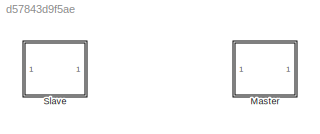
MODEL slx_d57843d9f5ae
KIND library
CONFIG AbsTol = 1e-6
CONFIG EnableMultiTasking = off
CONFIG FixedStep = auto
CONFIG MaxStep = auto
CONFIG MinStep = auto
CONFIG RelTol = 1e-3
CONFIG SampleTimeConstraint = Unconstrained
CONFIG SolverName = ode45
CONFIG StartTime = 0.0
CONFIG StopTime = 10.0
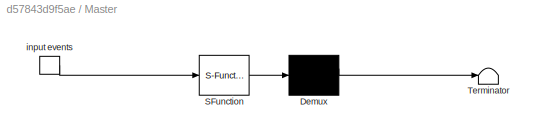
BLOCK [SubSystem] Master
  BlockKeywords = __PRM__SERIALIZED__DATA__:Stateflow Chart,Stateflow Diagram
  ErrorFcn = Stateflow.Translate.translate
  PermitHierarchicalResolution = ExplicitOnly
  SFBlockType = Chart
  TreatAsAtomicUnit = on
BLOCK [Demux] Master/ Demux 
  Outputs = 1
BLOCK [S-Function] Master/ SFunction 
  EnableBusSupport = off
  FunctionName = sf_sfun
  PortCounts = [1 1]
  SFcnIsStateOwnerBlock = off
  SFunctionDeploymentMode = off
  Tag = Stateflow S-Function 3
BLOCK [Terminator] Master/ Terminator 
BLOCK [TriggerPort] Master/input events
  ShowOutputPort = on
  StatesWhenEnabling = held
  TriggerType = function-call
  VariantControl = (inherit)
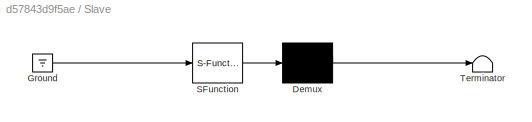
BLOCK [SubSystem] Slave
  ErrorFcn = Stateflow.Translate.translate
  PermitHierarchicalResolution = ExplicitOnly
  SFBlockType = Chart
  TreatAsAtomicUnit = on
BLOCK [Demux] Slave/ Demux 
  Outputs = 1
BLOCK [Ground] Slave/ Ground 
BLOCK [S-Function] Slave/ SFunction 
  EnableBusSupport = off
  FunctionName = sf_sfun
  PortCounts = [1 1]
  SFcnIsStateOwnerBlock = off
  SFunctionDeploymentMode = off
  Tag = Stateflow S-Function 1
BLOCK [Terminator] Slave/ Terminator 
CHART Slave states=0 transitions=0
CHART Master states=6 transitions=3
  STATE_LABEL 'OrionDisconn'
  STATE_LABEL 'Closed_0'
  STATE_LABEL 'Connecting_2'
  STATE_LABEL 'Connected_4'
  STATE_LABEL 'KeepAliveSendTimeout_1 '
  STATE_LABEL 'region_2_in_Kapcsolodva_4 '
  STATE_LABEL 'KeepAliveSendTimeout_1 '
  STATE_LABEL 'region_2_in_Kapcsolodva_4 '
CHART  states=0 transitions=0
CHART  states=0 transitions=0
